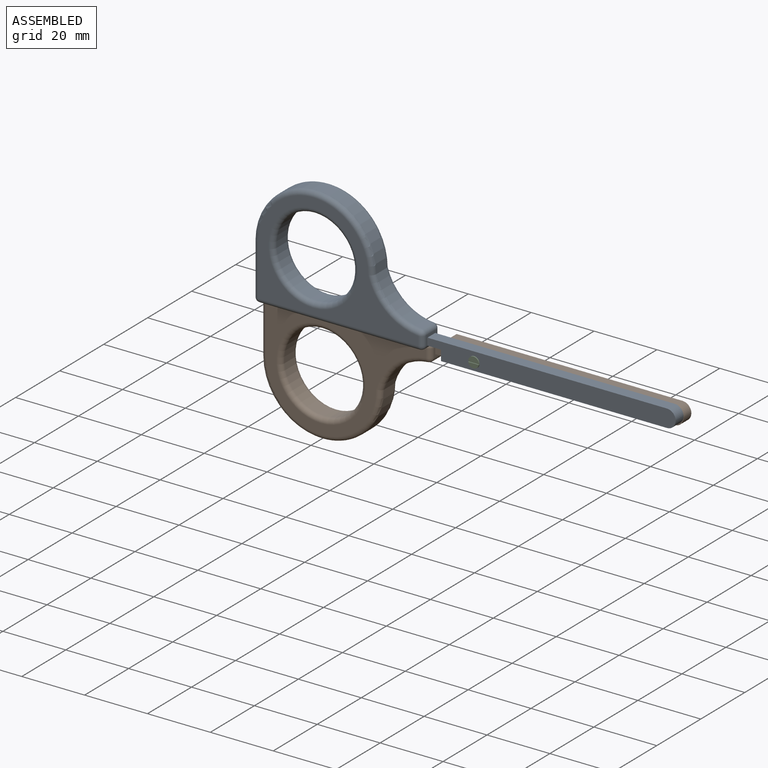
[diagram: assembled view]
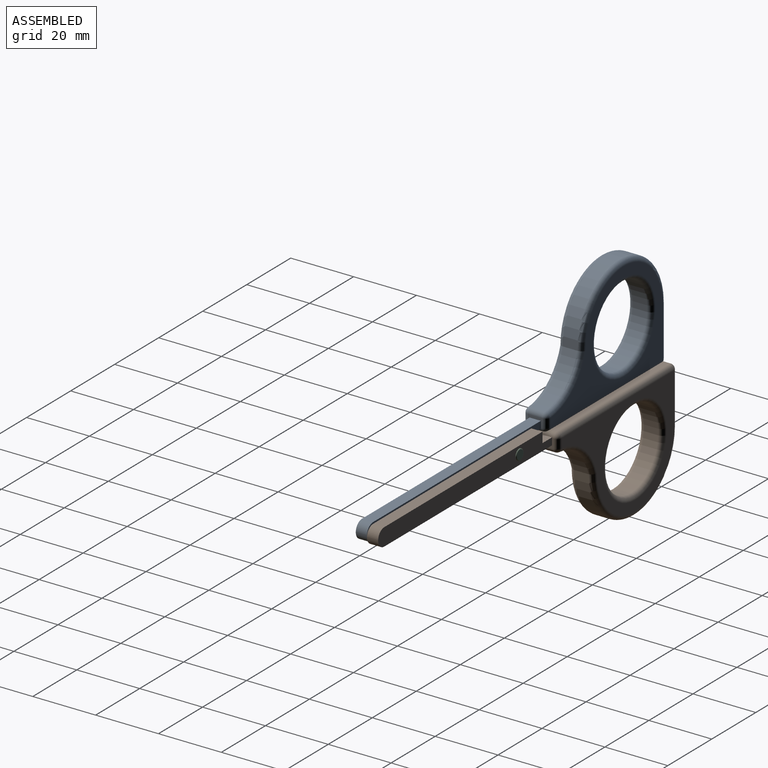
[diagram: assembled view, second angle]
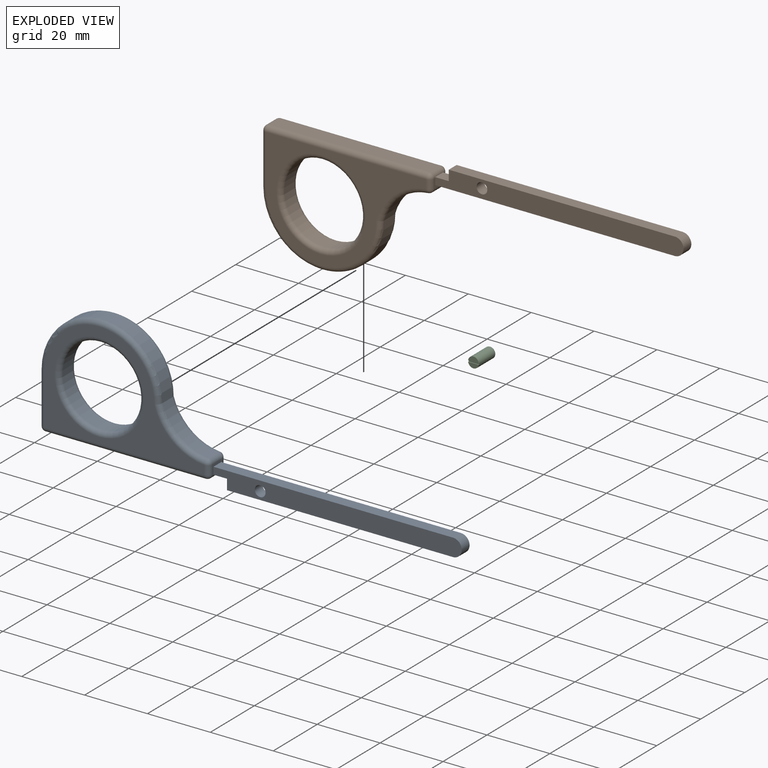
[diagram: exploded view]
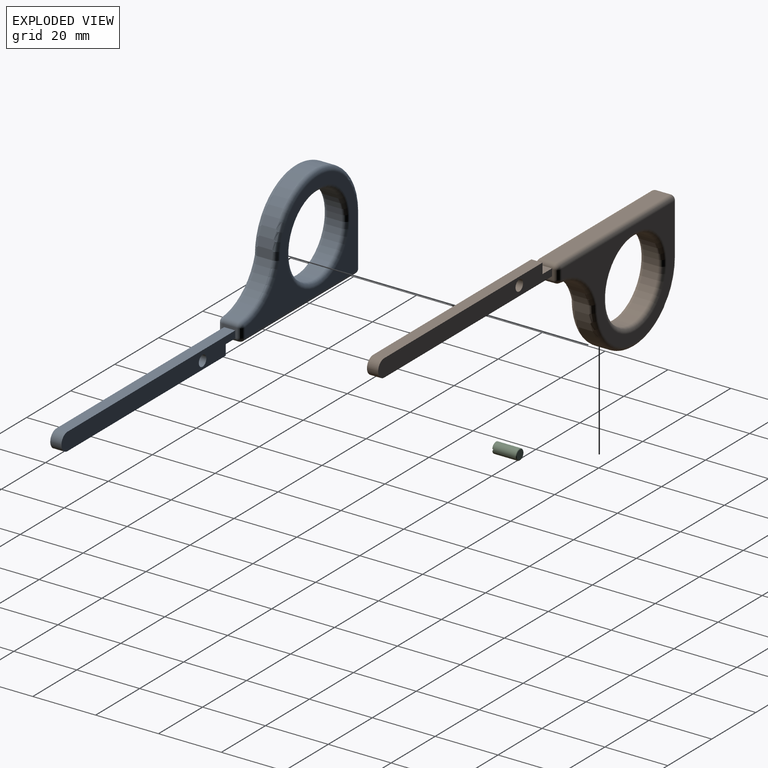
[diagram: exploded view, second angle]
ASSEMBLY  parts=3 mates=2
PART A: 37 faces, bbox 134.5x7.6x40.4 mm
  f0: plane 4.57x2.88mm, normal (1,0,0), area 6mm2, adj f13,f14,f15,f20,f29,f30,f34
  f1: plane 50.93x4.57mm, normal (0,0,-1), area 232.8mm2, adj f23,f28,f31,f34
  f2: cylinder r=16.51mm len=14.48mm, axis (0,1,0), area 91mm2, adj f3,f19,f20,f21
  f3: cylinder r=19.05mm len=38.1mm, axis (0,1,0), area 273.6mm2, adj f2,f5,f16,f17
  f4: cylinder r=12.7mm len=25.4mm, axis (0,1,0), area 364.8mm2, adj f35,f36
  f5: plane 16.26x4.57mm, normal (-1,0,0), area 74.3mm2, adj f3,f18,f22,f23
  f6: plane 50.93x33.78mm, normal (0,-1,0), area 521.5mm2, adj f16,f18,f19,f28,f29,f36
  f7: plane 50.93x33.78mm, normal (0,1,0), area 521.5mm2, adj f17,f21,f22,f30,f31,f35
  f8: plane 4.34x3.56mm, normal (0,0,-1), area 15.4mm2, adj f9,f14,f15,f34
  f9: plane 3.56x3.3mm, normal (-1,0,0), area 11.7mm2, adj f8,f10,f14,f15
  f10: plane 71.88x3.56mm, normal (0,0,-1), area 255.6mm2, adj f9,f11,f14,f15
  f11: cylinder r=2.79mm len=5.59mm, axis (0,1,0), area 31.2mm2, adj f10,f13,f14,f15
  f12: cylinder r=1.71mm len=3.56mm, axis (0,1,0), area 38.3mm2, adj f14,f15
  f13: plane 76.2x3.56mm, normal (0,0,1), area 271mm2, adj f0,f11,f14,f15
  f14: plane 79.02x5.59mm, normal (0,-1,0), area 414.6mm2, adj f0,f8,f9,f10,f11,f12,f13,f34
  f15: plane 79.02x5.59mm, normal (0,1,0), area 414.6mm2, adj f0,f8,f9,f10,f11,f12,f13,f34
  f16: torus R=17.53mm, axis (0,-1,0), area 139.3mm2, adj f3,f6,f18,f19
  f17: torus R=17.53mm, axis (0,-1,0), area 139.3mm2, adj f3,f7,f21,f22
  f18: cylinder r=1.52mm len=16.26mm, axis (0,0,1), area 38.9mm2, adj f5,f6,f16,f24
  f19: torus R=18.03mm, axis (0,-1,0), area 49.4mm2, adj f2,f6,f16,f25
  f20: cylinder r=1.52mm len=4.57mm, axis (0,1,0), area 10.4mm2, adj f0,f2,f25,f26
  f21: torus R=18.03mm, axis (0,-1,0), area 49.4mm2, adj f2,f7,f17,f26
  f22: cylinder r=1.52mm len=16.26mm, axis (0,0,-1), area 38.9mm2, adj f5,f7,f17,f27
  f23: cylinder r=1.52mm len=4.57mm, axis (0,1,0), area 10.9mm2, adj f1,f5,f24,f27
  f24: sphere r=1.52mm, area 3.6mm2, adj f18,f23,f28
  f25: sphere r=1.52mm, area 3.5mm2, adj f19,f20,f29
  f26: sphere r=1.52mm, area 3.5mm2, adj f20,f21,f30
  f27: sphere r=1.52mm, area 3.6mm2, adj f22,f23,f31
  f28: cylinder r=1.52mm len=50.93mm, axis (-1,0,0), area 121.9mm2, adj f1,f6,f24,f32
  f29: cylinder r=1.52mm len=2.88mm, axis (0,0,-1), area 6.9mm2, adj f0,f6,f25,f32
  f30: cylinder r=1.52mm len=2.88mm, axis (0,0,1), area 6.9mm2, adj f0,f7,f26,f33
  f31: cylinder r=1.52mm len=50.93mm, axis (1,0,0), area 121.9mm2, adj f1,f7,f27,f33
  f32: sphere r=1.52mm, area 3.6mm2, adj f28,f29,f34
  f33: sphere r=1.52mm, area 3.6mm2, adj f30,f31,f34
  f34: cylinder r=1.52mm len=4.57mm, axis (0,-1,0), area 10mm2, adj f0,f1,f8,f14,f15,f32,f33
  f35: torus R=14.22mm, axis (0,-1,0), area 199.4mm2, adj f4,f7
  f36: torus R=14.22mm, axis (0,-1,0), area 199.4mm2, adj f4,f6
PART B: same geometry as A
PART C: 8 faces, bbox 3.7x7.7x3.7 mm
  f0: plane 3.37x1.45mm, normal (0,-1,0), area 3.7mm2, adj f1,f5
  f1: cylinder r=1.7mm len=7.42mm, axis (0,1,0), area 79mm2, adj f0,f2,f4,f5,f6,f7
  f2: plane 3.37x1.45mm, normal (0,-1,0), area 3.7mm2, adj f1,f4
  f3: plane 2.9x2.9mm, normal (0,1,0), area 6.6mm2, adj f7
  f4: plane 3.37x0.25mm, normal (0,0,1), area 0.9mm2, adj f1,f2,f6
  f5: plane 3.37x0.25mm, normal (0,0,-1), area 0.9mm2, adj f0,f1,f6
  f6: plane 3.4x0.51mm, normal (0,-1,0), area 1.7mm2, adj f1,f4,f5
  f7: torus R=1.45mm, axis (0,-1,0), area 4mm2, adj f1,f3
PLACE A t=(-2.02,-19.58,-38.94)mm
PLACE B rot(axis=(1,0,0),180deg) t=(-2.02,-16.03,-45.04)mm
PLACE C t=(12.84,-17.83,-41.99)mm
MATE fastened C.f1 <-> B.f12  axis (0,1,0) through (12.84,-14.25,-41.99)mm
MATE revolute A.f12 <-> B.f12  axis (0,1,0) through (12.84,-17.81,-41.99)mm
